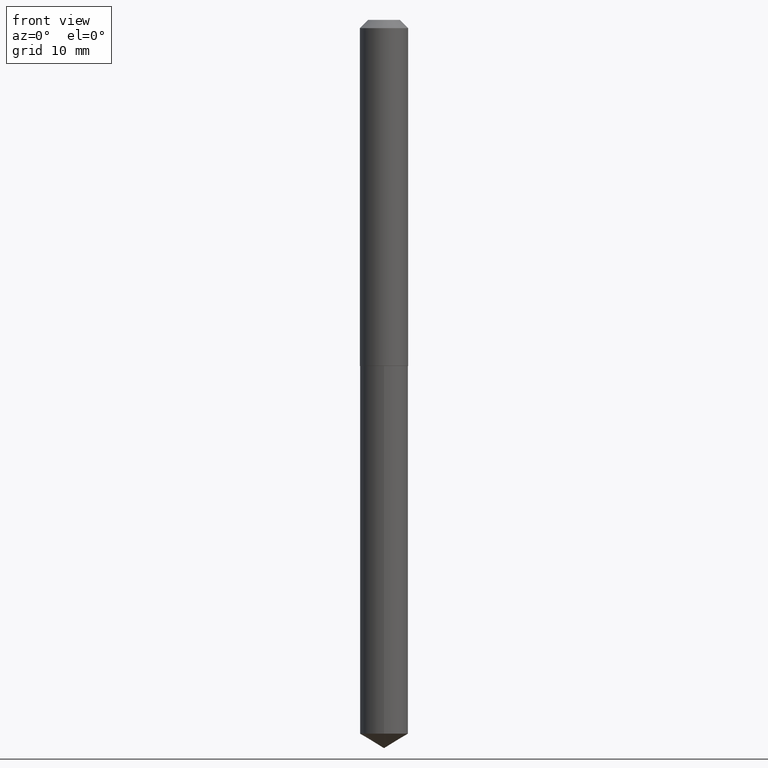
[diagram: clean part render]
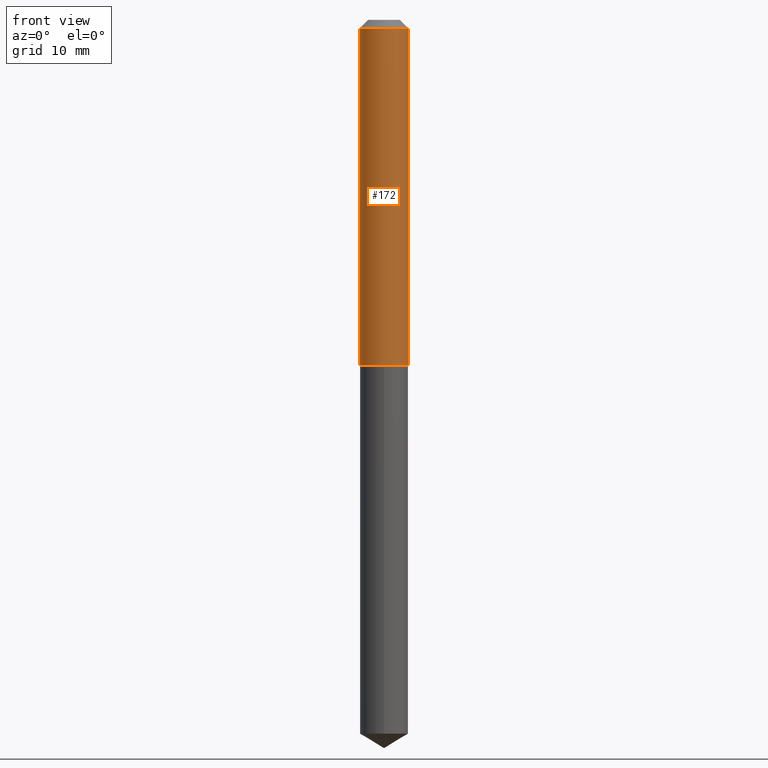
[diagram: same view with one face highlighted and labeled with its STEP entity id]
A machine part, front view. The second image highlights one B-rep face of the part: STEP entity #172.
In plain terms, the highlighted cylindrical surface (edge-blend (fillet) strip) has radius 2.3114 mm, axis along (-0, 0, 1).
Its self-contained STEP definition (entity closure, byte-faithful):
#3 = CIRCLE ( 'NONE', #191, 0.09100000000000016409 ) ;
#29 = VECTOR ( 'NONE', #248, 39.37007874015748143 ) ;
#31 = ORIENTED_EDGE ( 'NONE', *, *, #366, .T. ) ;
#67 = EDGE_CURVE ( 'NONE', #328, #313, #220, .T. ) ;
#70 = CARTESIAN_POINT ( 'NONE',  ( -0.09100000000000016409, -3.915026479656876942E-15, -1.306499999999999773 ) ) ;
#75 = ORIENTED_EDGE ( 'NONE', *, *, #91, .F. ) ;
#91 = EDGE_CURVE ( 'NONE', #320, #313, #242, .T. ) ;
#93 = DIRECTION ( 'NONE',  ( 1.000000000000000000, -6.982962677686265922E-15, 0.000000000000000000 ) ) ;
#130 = AXIS2_PLACEMENT_3D ( 'NONE', #387, #332, #245 ) ;
#134 = ORIENTED_EDGE ( 'NONE', *, *, #67, .T. ) ;
#135 = LINE ( 'NONE', #250, #228 ) ;
#172 = ADVANCED_FACE ( 'NONE', ( #356 ), #382, .T. ) ;
#179 = CARTESIAN_POINT ( 'NONE',  ( 0.09100000000000008082, -6.354496036694508663E-16, 4.437320865974305944E-30 ) ) ;
#191 = AXIS2_PLACEMENT_3D ( 'NONE', #351, #300, #315 ) ;
#201 = EDGE_CURVE ( 'NONE', #259, #320, #135, .T. ) ;
#220 = LINE ( 'NONE', #179, #29 ) ;
#228 = VECTOR ( 'NONE', #253, 39.37007874015748143 ) ;
#238 = CARTESIAN_POINT ( 'NONE',  ( 7.642090019328598283E-31, -1.091087918388489651E-16, -0.03125000000000019429 ) ) ;
#242 = CIRCLE ( 'NONE', #297, 0.09099999999999999756 ) ;
#245 = DIRECTION ( 'NONE',  ( 1.000000000000000000, -6.982962677686266711E-15, 4.876176775795936353E-29 ) ) ;
#248 = DIRECTION ( 'NONE',  ( -2.445468806185136877E-29, 3.491481338843145188E-15, 1.000000000000000000 ) ) ;
#250 = CARTESIAN_POINT ( 'NONE',  ( -0.09100000000000008082, 6.465938895416917434E-16, -4.476230932131968404E-30 ) ) ;
#253 = DIRECTION ( 'NONE',  ( -2.445468806185136877E-29, 3.491481338843145188E-15, 1.000000000000000000 ) ) ;
#259 = VERTEX_POINT ( 'NONE', #70 ) ;
#265 = CARTESIAN_POINT ( 'NONE',  ( -0.09099999999999999756, -1.688770690977016952E-15, -0.03125000000000019429 ) ) ;
#286 = EDGE_LOOP ( 'NONE', ( #288, #31, #134, #75 ) ) ;
#288 = ORIENTED_EDGE ( 'NONE', *, *, #201, .F. ) ;
#297 = AXIS2_PLACEMENT_3D ( 'NONE', #238, #305, #93 ) ;
#300 = DIRECTION ( 'NONE',  ( -2.445468806185136597E-29, 3.491481338843145583E-15, 1.000000000000000000 ) ) ;
#305 = DIRECTION ( 'NONE',  ( -2.445468806185136597E-29, 3.491481338843145583E-15, 1.000000000000000000 ) ) ;
#313 = VERTEX_POINT ( 'NONE', #348 ) ;
#315 = DIRECTION ( 'NONE',  ( 1.000000000000000000, -6.982962677686267499E-15, 0.000000000000000000 ) ) ;
#319 = CARTESIAN_POINT ( 'NONE',  ( 0.09100000000000016409, -5.197069972868021228E-15, -1.306499999999999773 ) ) ;
#320 = VERTEX_POINT ( 'NONE', #265 ) ;
#328 = VERTEX_POINT ( 'NONE', #319 ) ;
#332 = DIRECTION ( 'NONE',  ( -2.445468806185136597E-29, 3.491481338843145583E-15, 1.000000000000000000 ) ) ;
#348 = CARTESIAN_POINT ( 'NONE',  ( 0.09099999999999999756, -7.445583955082991780E-16, -0.03125000000000019429 ) ) ;
#351 = CARTESIAN_POINT ( 'NONE',  ( 3.195004995280880408E-29, -4.561620369198569474E-15, -1.306499999999999773 ) ) ;
#356 = FACE_OUTER_BOUND ( 'NONE', #286, .T. ) ;
#366 = EDGE_CURVE ( 'NONE', #259, #328, #3, .T. ) ;
#382 = CYLINDRICAL_SURFACE ( 'NONE', #130, 0.09100000000000008082 ) ;
#387 = CARTESIAN_POINT ( 'NONE',  ( 0.000000000000000000, 0.000000000000000000, 0.000000000000000000 ) ) ;